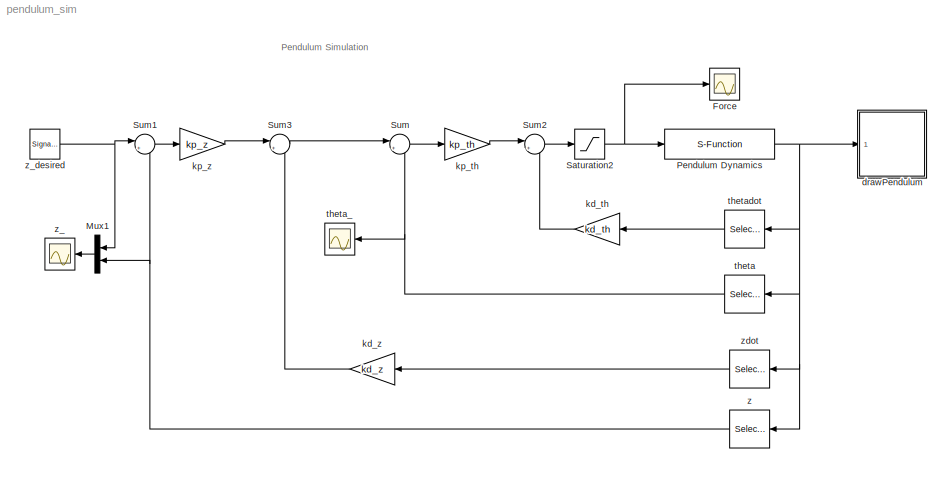
MODEL pendulum_sim
KIND model
BLOCK [Scope] Force
  DataFormat = StructureWithTime
  Floating = off
  LimitDataPoints = off
  NumInputPorts = 1
  Ports = [1]
  SID = 21
  SampleTime = 0
  TimeRange = 100
  YMax = 10
  YMin = -6
BLOCK [Mux] Mux1
  DisplayOption = bar
  Inputs = 2
  Ports = [2, 1]
  SID = 24
BLOCK [S-Function] Pendulum Dynamics
  EnableBusSupport = off
  FunctionName = pendulum_dynamics
  Parameters = AP
  Ports = [1, 1]
  SID = 11
BLOCK [Saturate] Saturation2
  InputPortMap = u0
  LowerLimit = -5
  Ports = [1, 1]
  SID = 37
  UpperLimit = 5
BLOCK [Sum] Sum
  IconShape = round
  InputSameDT = off
  Inputs = |+-
  OutDataTypeStr = Inherit: Inherit via internal rule
  Ports = [2, 1]
  SID = 16
  SaturateOnIntegerOverflow = off
BLOCK [Sum] Sum1
  IconShape = round
  InputSameDT = off
  Inputs = |+-
  OutDataTypeStr = Inherit: Inherit via internal rule
  Ports = [2, 1]
  SID = 18
  SaturateOnIntegerOverflow = off
BLOCK [Sum] Sum2
  IconShape = round
  InputSameDT = off
  Inputs = |+-
  OutDataTypeStr = Inherit: Inherit via internal rule
  Ports = [2, 1]
  SID = 27
  SaturateOnIntegerOverflow = off
BLOCK [Sum] Sum3
  IconShape = round
  InputSameDT = off
  Inputs = |+-
  OutDataTypeStr = Inherit: Inherit via internal rule
  Ports = [2, 1]
  SID = 32
  SaturateOnIntegerOverflow = off
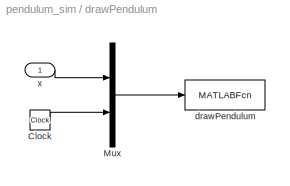
BLOCK [SubSystem] drawPendulum
  FunctionWithSeparateData = off
  MaskDisplay = image(imread('tv.jpg'))
  MaskHideContents = off
  MaskIconFrame = on
  MaskIconOpaque = on
  MaskIconRotate = none
  MaskIconUnits = autoscale
  MaskInitialization = % drawing parameters\nL = 1;\ngap = 0.01;\nwidth = 1.0;\nheight = 0.1;\n
  MaskPortRotate = default
  MinAlgLoopOccurrences = off
  Opaque = off
  Ports = [1]
  PropExecContextOutsideSubsystem = off
  RTWSystemCode = Auto
  RequestExecContextInheritance = off
  SID = 4
BLOCK [Clock] drawPendulum/Clock
  Decimation = 10
  SID = 6
BLOCK [Mux] drawPendulum/Mux
  DisplayOption = bar
  Inputs = 2
  Ports = [2, 1]
  SID = 7
BLOCK [MATLABFcn] drawPendulum/drawPendulum
  MATLABFcn = drawPendulum(u,L,gap,width,height)
  OutputDimensions = 0
  Ports = [1]
  SID = 8
  SampleTime = 0.1
BLOCK [Inport] drawPendulum/x
  IconDisplay = Port number
  SID = 5
BLOCK [Gain] kd_th
  Gain = kd_th
  Multiplication = Matrix(K*u)
  OutDataTypeStr = Inherit: Inherit via internal rule
  ParamDataTypeStr = Inherit: Inherit via internal rule
  SID = 30
  SaturateOnIntegerOverflow = off
BLOCK [Gain] kd_z
  Gain = kd_z
  Multiplication = Matrix(K*u)
  OutDataTypeStr = Inherit: Inherit via internal rule
  ParamDataTypeStr = Inherit: Inherit via internal rule
  SID = 34
  SaturateOnIntegerOverflow = off
BLOCK [Gain] kp_th
  Gain = kp_th
  Multiplication = Matrix(K*u)
  OutDataTypeStr = Inherit: Inherit via internal rule
  ParamDataTypeStr = Inherit: Inherit via internal rule
  SID = 26
  SaturateOnIntegerOverflow = off
BLOCK [Gain] kp_z
  Gain = kp_z
  Multiplication = Matrix(K*u)
  OutDataTypeStr = Inherit: Inherit via internal rule
  ParamDataTypeStr = Inherit: Inherit via internal rule
  SID = 31
  SaturateOnIntegerOverflow = off
BLOCK [Selector] theta
  IndexOptions = Index vector (dialog)
  Indices = [2]
  InputPortWidth = 4
  OutputSizes = 1
  Ports = [1, 1]
  SID = 17
BLOCK [Scope] theta_
  DataFormat = StructureWithTime
  Floating = off
  LimitDataPoints = off
  NumInputPorts = 1
  Ports = [1]
  SID = 23
  SampleTime = 0
  SaveName = ScopeData1
  TimeRange = 100
  YMax = 0.2
  YMin = -0.2
BLOCK [Selector] thetadot
  IndexOptions = Index vector (dialog)
  Indices = [4]
  InputPortWidth = 4
  OutputSizes = 1
  Ports = [1, 1]
  SID = 28
BLOCK [Selector] z
  IndexOptions = Index vector (dialog)
  Indices = [1]
  InputPortWidth = 4
  OutputSizes = 1
  Ports = [1, 1]
  SID = 19
BLOCK [Scope] z_
  DataFormat = StructureWithTime
  Floating = off
  LimitDataPoints = off
  NumInputPorts = 1
  Ports = [1]
  SID = 25
  SampleTime = 0
  SaveName = ScopeData2
  TimeRange = 100
  YMax = 2
  YMin = -2
BLOCK [SignalGenerator] z_desired
  Frequency = .02
  Ports = [0, 1]
  SID = 20
  WaveForm = square
BLOCK [Selector] zdot
  IndexOptions = Index vector (dialog)
  Indices = [3]
  InputPortWidth = 4
  OutputSizes = 1
  Ports = [1, 1]
  SID = 33
ANNOTATION (root): Pendulum Simulation
LINE Mux1:1 -> z_:1
NET Pendulum Dynamics:1 -> drawPendulum:1, theta:1, thetadot:1, z:1, zdot:1
NET Saturation2:1 -> Force:1, Pendulum Dynamics:1
LINE Sum1:1 -> kp_z:1
LINE Sum2:1 -> Saturation2:1
LINE Sum3:1 -> Sum:1
LINE Sum:1 -> kp_th:1
LINE drawPendulum/Clock:1 -> drawPendulum/Mux:2
LINE drawPendulum/Mux:1 -> drawPendulum/drawPendulum:1
LINE drawPendulum/x:1 -> drawPendulum/Mux:1
LINE kd_th:1 -> Sum2:2
LINE kd_z:1 -> Sum3:2
LINE kp_th:1 -> Sum2:1
LINE kp_z:1 -> Sum3:1
NET theta:1 -> Sum:2, theta_:1
LINE thetadot:1 -> kd_th:1
NET z:1 -> Mux1:2, Sum1:2
NET z_desired:1 -> Mux1:1, Sum1:1
LINE zdot:1 -> kd_z:1
note: NET lines group one-source signal fan-out (src -> all destinations, sorted); 1:1 wires keep LINE
